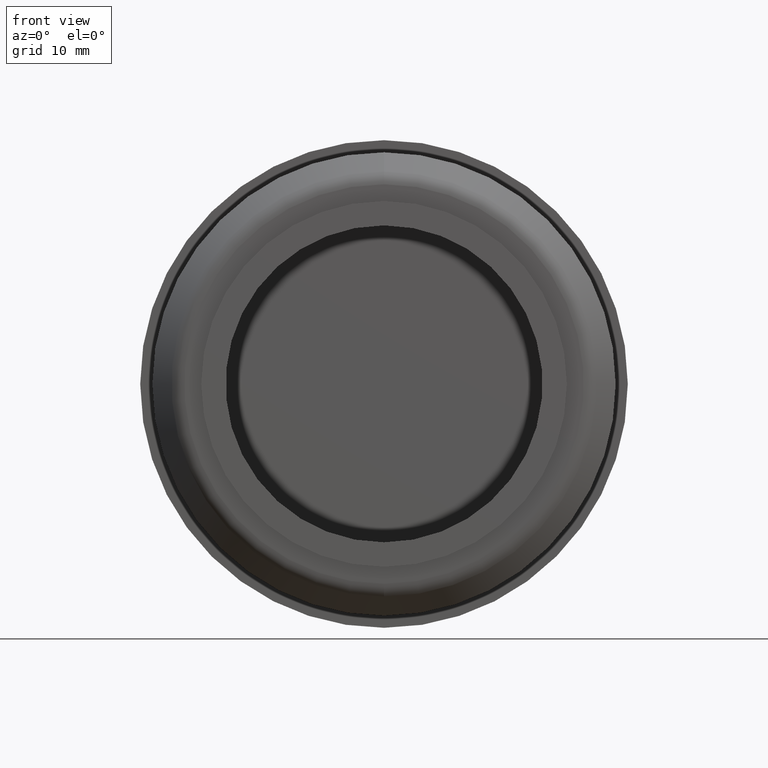
[diagram: clean part render]
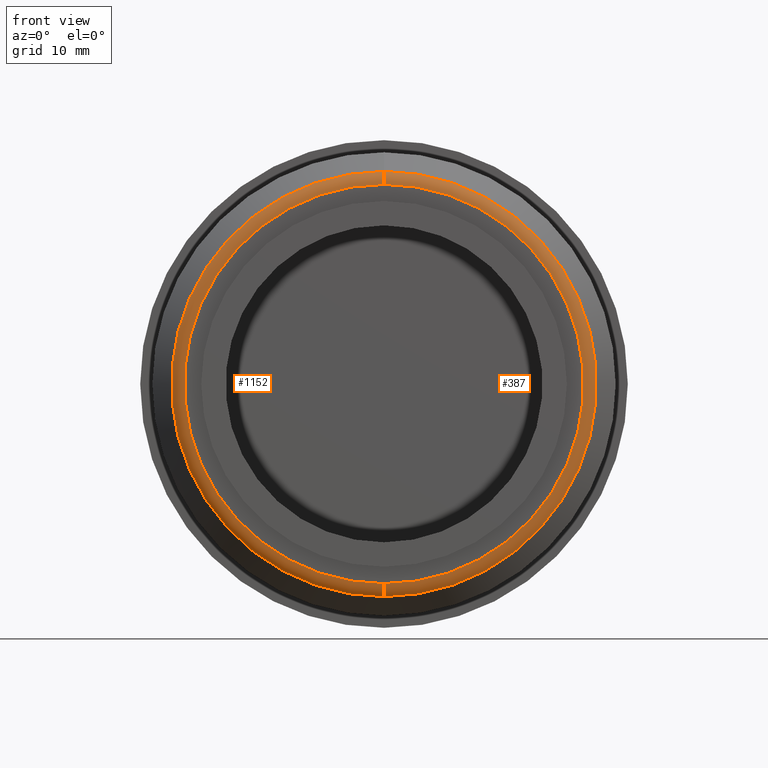
[diagram: same view with one multi-face feature highlighted, each face labeled with its STEP entity id]
A machine part, front view. The highlighted faces form ONE feature: a constant-radius fillet chain: 2 tangent blend faces with common blend radius 1.5 mm. The faces share edges in the B-rep.
Their STEP definitions:
[1] entity #387 (Torus):
#8 = CARTESIAN_POINT ( 'NONE',  ( 0.000000000000000000, 0.6000000000000033085, -16.37867965644035806 ) ) ;
#15 = EDGE_CURVE ( 'NONE', #895, #648, #845, .T. ) ;
#26 = AXIS2_PLACEMENT_3D ( 'NONE', #169, #873, #712 ) ;
#37 = TOROIDAL_SURFACE ( 'NONE', #347, 16.37867965644035806, 1.500000000000000000 ) ;
#39 = DIRECTION ( 'NONE',  ( -1.000000000000000000, 0.000000000000000000, 0.000000000000000000 ) ) ;
#110 = ORIENTED_EDGE ( 'NONE', *, *, #1142, .F. ) ;
#130 = DIRECTION ( 'NONE',  ( 0.000000000000000000, 0.000000000000000000, -1.000000000000000000 ) ) ;
#143 = ORIENTED_EDGE ( 'NONE', *, *, #1050, .F. ) ;
#152 = EDGE_LOOP ( 'NONE', ( #110, #235, #143, #382 ) ) ;
#155 = AXIS2_PLACEMENT_3D ( 'NONE', #595, #671, #511 ) ;
#169 = CARTESIAN_POINT ( 'NONE',  ( 0.000000000000000000, 1.039339828220180229, 0.000000000000000000 ) ) ;
#200 = CARTESIAN_POINT ( 'NONE',  ( 0.000000000000000000, 1.039339828220180229, 17.43933982822017725 ) ) ;
#222 = CARTESIAN_POINT ( 'NONE',  ( 0.000000000000000000, 2.100000000000003197, -16.37867965644035806 ) ) ;
#235 = ORIENTED_EDGE ( 'NONE', *, *, #15, .T. ) ;
#330 = CARTESIAN_POINT ( 'NONE',  ( 2.231266044183625193E-15, 1.039339828220180229, -17.43933982822017725 ) ) ;
#333 = DIRECTION ( 'NONE',  ( -1.224646799147353454E-16, 0.000000000000000000, -1.000000000000000000 ) ) ;
#347 = AXIS2_PLACEMENT_3D ( 'NONE', #755, #675, #130 ) ;
#352 = EDGE_CURVE ( 'NONE', #699, #549, #1150, .T. ) ;
#362 = CARTESIAN_POINT ( 'NONE',  ( 2.070756465769617820E-15, 0.6000000000000033085, 16.37867965644035806 ) ) ;
#382 = ORIENTED_EDGE ( 'NONE', *, *, #352, .F. ) ;
#387 = ADVANCED_FACE ( 'NONE', ( #396 ), #37, .T. ) ;
#396 = FACE_OUTER_BOUND ( 'NONE', #152, .T. ) ;
#511 = DIRECTION ( 'NONE',  ( 0.000000000000000000, 0.000000000000000000, -1.000000000000000000 ) ) ;
#544 = CIRCLE ( 'NONE', #26, 17.43933982822017725 ) ;
#549 = VERTEX_POINT ( 'NONE', #8 ) ;
#593 = DIRECTION ( 'NONE',  ( 0.000000000000000000, 0.000000000000000000, 1.000000000000000000 ) ) ;
#595 = CARTESIAN_POINT ( 'NONE',  ( 0.000000000000000000, 0.6000000000000033085, 0.000000000000000000 ) ) ;
#626 = DIRECTION ( 'NONE',  ( 1.000000000000000000, 0.000000000000000000, -1.224646799147353207E-16 ) ) ;
#648 = VERTEX_POINT ( 'NONE', #362 ) ;
#671 = DIRECTION ( 'NONE',  ( -0.000000000000000000, -1.000000000000000000, -0.000000000000000000 ) ) ;
#675 = DIRECTION ( 'NONE',  ( -0.000000000000000000, -1.000000000000000000, -0.000000000000000000 ) ) ;
#699 = VERTEX_POINT ( 'NONE', #330 ) ;
#712 = DIRECTION ( 'NONE',  ( 0.000000000000000000, 0.000000000000000000, -1.000000000000000000 ) ) ;
#742 = CIRCLE ( 'NONE', #155, 16.37867965644035806 ) ;
#755 = CARTESIAN_POINT ( 'NONE',  ( 0.000000000000000000, 2.100000000000003197, 0.000000000000000000 ) ) ;
#845 = CIRCLE ( 'NONE', #1148, 1.499999999999999556 ) ;
#864 = AXIS2_PLACEMENT_3D ( 'NONE', #222, #39, #593 ) ;
#873 = DIRECTION ( 'NONE',  ( 0.000000000000000000, 1.000000000000000000, 0.000000000000000000 ) ) ;
#895 = VERTEX_POINT ( 'NONE', #200 ) ;
#1050 = EDGE_CURVE ( 'NONE', #549, #648, #742, .T. ) ;
#1136 = CARTESIAN_POINT ( 'NONE',  ( 2.005809761551955435E-15, 2.100000000000003197, 16.37867965644035806 ) ) ;
#1142 = EDGE_CURVE ( 'NONE', #895, #699, #544, .T. ) ;
#1148 = AXIS2_PLACEMENT_3D ( 'NONE', #1136, #626, #333 ) ;
#1150 = CIRCLE ( 'NONE', #864, 1.499999999999999556 ) ;
[2] entity #1152 (Torus):
#8 = CARTESIAN_POINT ( 'NONE',  ( 0.000000000000000000, 0.6000000000000033085, -16.37867965644035806 ) ) ;
#15 = EDGE_CURVE ( 'NONE', #895, #648, #845, .T. ) ;
#16 = DIRECTION ( 'NONE',  ( 0.000000000000000000, 1.000000000000000000, 0.000000000000000000 ) ) ;
#27 = AXIS2_PLACEMENT_3D ( 'NONE', #522, #627, #1058 ) ;
#39 = DIRECTION ( 'NONE',  ( -1.000000000000000000, 0.000000000000000000, 0.000000000000000000 ) ) ;
#135 = EDGE_CURVE ( 'NONE', #648, #549, #1103, .T. ) ;
#199 = AXIS2_PLACEMENT_3D ( 'NONE', #727, #16, #299 ) ;
#200 = CARTESIAN_POINT ( 'NONE',  ( 0.000000000000000000, 1.039339828220180229, 17.43933982822017725 ) ) ;
#220 = DIRECTION ( 'NONE',  ( 0.000000000000000000, 0.000000000000000000, -1.000000000000000000 ) ) ;
#222 = CARTESIAN_POINT ( 'NONE',  ( 0.000000000000000000, 2.100000000000003197, -16.37867965644035806 ) ) ;
#299 = DIRECTION ( 'NONE',  ( 0.000000000000000000, 0.000000000000000000, -1.000000000000000000 ) ) ;
#330 = CARTESIAN_POINT ( 'NONE',  ( 2.231266044183625193E-15, 1.039339828220180229, -17.43933982822017725 ) ) ;
#333 = DIRECTION ( 'NONE',  ( -1.224646799147353454E-16, 0.000000000000000000, -1.000000000000000000 ) ) ;
#352 = EDGE_CURVE ( 'NONE', #699, #549, #1150, .T. ) ;
#354 = FACE_OUTER_BOUND ( 'NONE', #450, .T. ) ;
#362 = CARTESIAN_POINT ( 'NONE',  ( 2.070756465769617820E-15, 0.6000000000000033085, 16.37867965644035806 ) ) ;
#376 = ORIENTED_EDGE ( 'NONE', *, *, #352, .T. ) ;
#450 = EDGE_LOOP ( 'NONE', ( #915, #940, #376, #533 ) ) ;
#522 = CARTESIAN_POINT ( 'NONE',  ( 0.000000000000000000, 2.100000000000003197, 0.000000000000000000 ) ) ;
#533 = ORIENTED_EDGE ( 'NONE', *, *, #135, .F. ) ;
#549 = VERTEX_POINT ( 'NONE', #8 ) ;
#580 = DIRECTION ( 'NONE',  ( -0.000000000000000000, -1.000000000000000000, -0.000000000000000000 ) ) ;
#593 = DIRECTION ( 'NONE',  ( 0.000000000000000000, 0.000000000000000000, 1.000000000000000000 ) ) ;
#626 = DIRECTION ( 'NONE',  ( 1.000000000000000000, 0.000000000000000000, -1.224646799147353207E-16 ) ) ;
#627 = DIRECTION ( 'NONE',  ( -0.000000000000000000, -1.000000000000000000, -0.000000000000000000 ) ) ;
#648 = VERTEX_POINT ( 'NONE', #362 ) ;
#699 = VERTEX_POINT ( 'NONE', #330 ) ;
#707 = CIRCLE ( 'NONE', #199, 17.43933982822017725 ) ;
#727 = CARTESIAN_POINT ( 'NONE',  ( 0.000000000000000000, 1.039339828220180229, 0.000000000000000000 ) ) ;
#758 = CARTESIAN_POINT ( 'NONE',  ( 0.000000000000000000, 0.6000000000000033085, 0.000000000000000000 ) ) ;
#845 = CIRCLE ( 'NONE', #1148, 1.499999999999999556 ) ;
#846 = EDGE_CURVE ( 'NONE', #699, #895, #707, .T. ) ;
#864 = AXIS2_PLACEMENT_3D ( 'NONE', #222, #39, #593 ) ;
#895 = VERTEX_POINT ( 'NONE', #200 ) ;
#915 = ORIENTED_EDGE ( 'NONE', *, *, #15, .F. ) ;
#940 = ORIENTED_EDGE ( 'NONE', *, *, #846, .F. ) ;
#981 = TOROIDAL_SURFACE ( 'NONE', #27, 16.37867965644035806, 1.500000000000000000 ) ;
#1058 = DIRECTION ( 'NONE',  ( 0.000000000000000000, 0.000000000000000000, -1.000000000000000000 ) ) ;
#1103 = CIRCLE ( 'NONE', #1172, 16.37867965644035806 ) ;
#1136 = CARTESIAN_POINT ( 'NONE',  ( 2.005809761551955435E-15, 2.100000000000003197, 16.37867965644035806 ) ) ;
#1148 = AXIS2_PLACEMENT_3D ( 'NONE', #1136, #626, #333 ) ;
#1150 = CIRCLE ( 'NONE', #864, 1.499999999999999556 ) ;
#1152 = ADVANCED_FACE ( 'NONE', ( #354 ), #981, .T. ) ;
#1172 = AXIS2_PLACEMENT_3D ( 'NONE', #758, #580, #220 ) ;